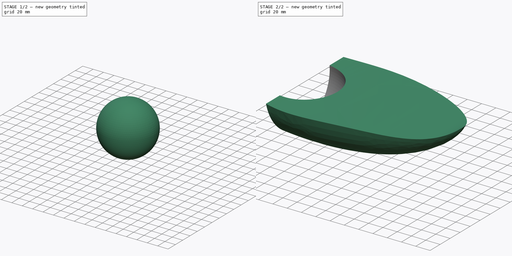
[diagram: build sequence overview — one tinted view per stage of 2, left to right]
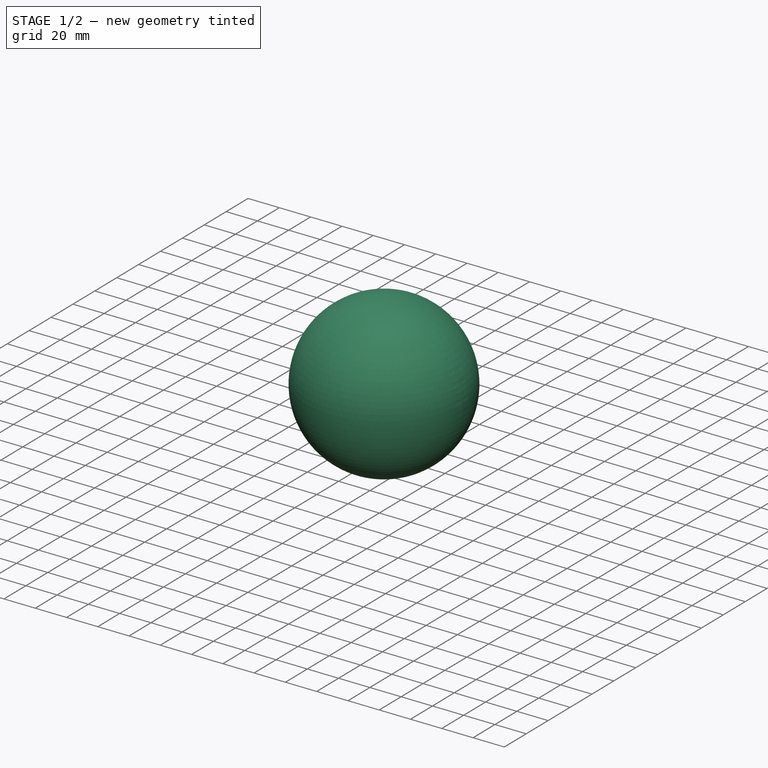
[diagram: stage 1 of 2 — iso view after this stage's code; geometry added in this stage tinted green]
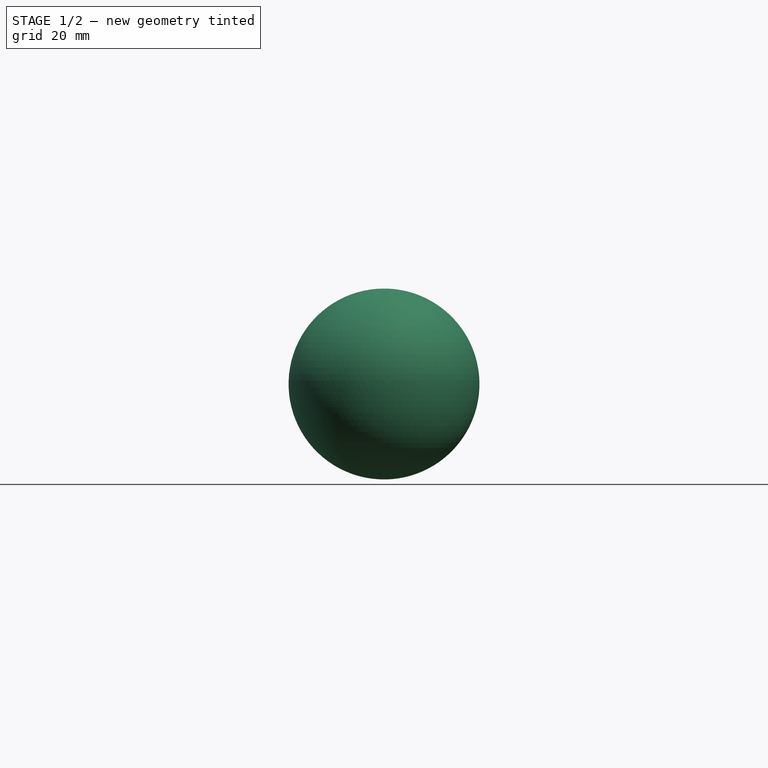
[diagram: stage 1 of 2 — front view after this stage's code; geometry added in this stage tinted green]
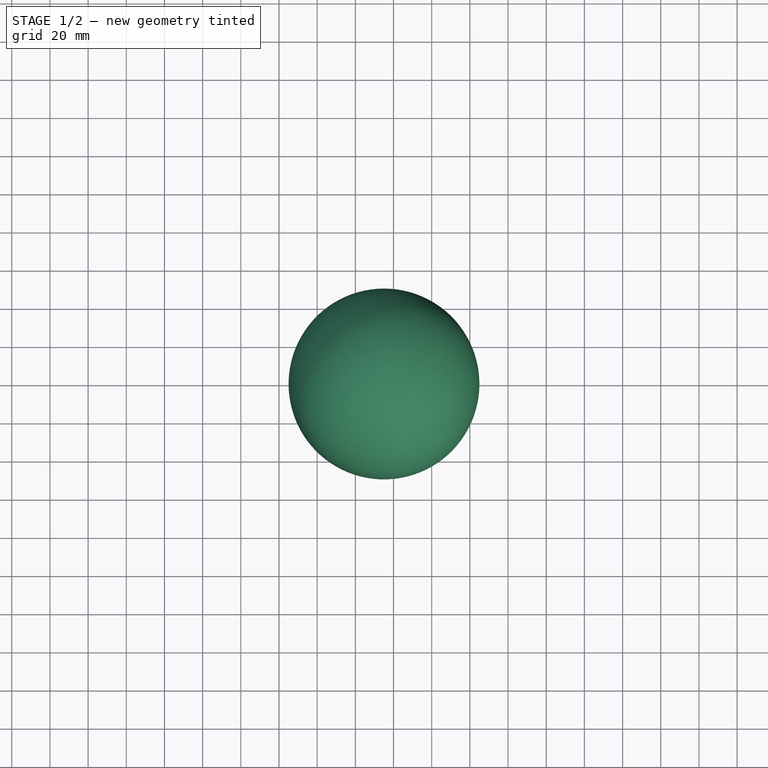
[diagram: stage 1 of 2 — top view after this stage's code; geometry added in this stage tinted green]
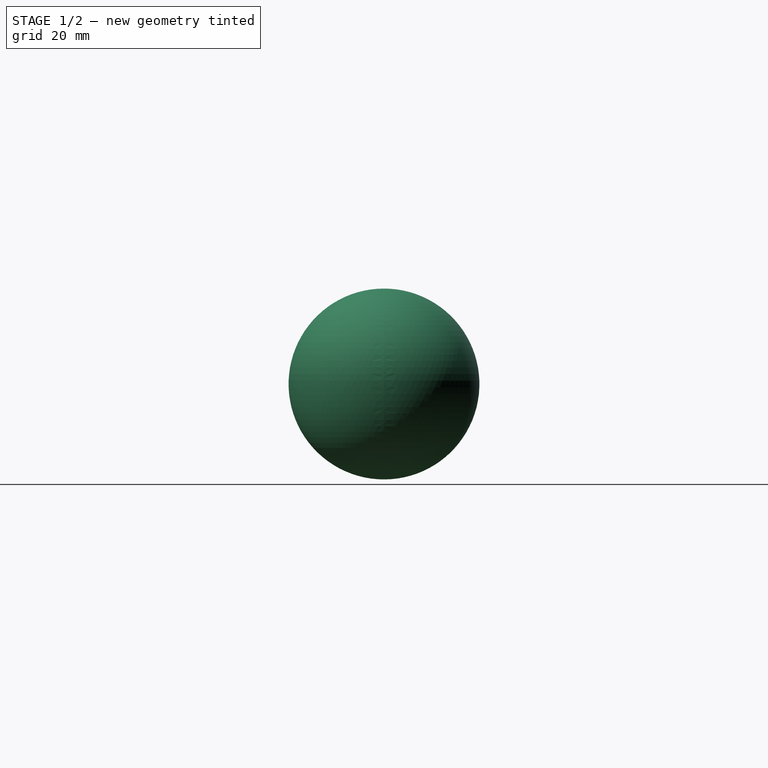
[diagram: stage 1 of 2 — right view after this stage's code; geometry added in this stage tinted green]
FCSTD DOCUMENT  (FreeCAD 0.20R29410 (Git))
Label: MangoJelly_Solutions_Tutorial_Ep11_2
License: All rights reserved
LicenseURL: http://en.wikipedia.org/wiki/All_rights_reserved
objects: Sketcher::SketchObject×6, Part::RuledSurface×2, Part::Compound×2, Part::Loft×1, Part::Feature×1, Part::Sphere×1, Part::Cut×1
note: 14 computed .brp shape members not serialized (recipe doc carries the construction recipe); baked Part::Feature solids carry a one-line shape summary decoded from their .brp

FEATURE [Sketcher::SketchObject] Sketch
  FullyConstrained = false
  sketch-geometry (4):
    g0: LineSegment StartX=-121.31 StartY=0 StartZ=0 EndX=-71.3096 EndY=0 EndZ=0
    g1: LineSegment StartX=-71.3096 StartY=0 StartZ=0 EndX=48.6904 EndY=0 EndZ=0
    g2: LineSegment StartX=48.6904 StartY=0 StartZ=0 EndX=78.6904 EndY=0 EndZ=0
    g3: LineSegment StartX=78.6904 StartY=0 StartZ=0 EndX=128.69 EndY=0 EndZ=0
  constraints (12):
    c: PointOnObject(g0,g-1)
    c: PointOnObject(g0,g-1)
    c: Coincident(g0,g1)
    c: PointOnObject(g1,g-1)
    c: Coincident(g1,g2)
    c: PointOnObject(g2,g-1)
    c: Coincident(g2,g3)
    c: PointOnObject(g3,g-1)
    c: DistanceX(g0,g0) = 50
    c: DistanceX(g1,g1) = 120
    c: DistanceX(g2,g2) = 30
    c: DistanceX(g3,g3) = 50
FEATURE [Sketcher::SketchObject] Sketch001
  FullyConstrained = false
  MapMode = 7
  Placement = pos=(-121.31,0,0) rot=(0.57735,-0.57735,-0.57735;2.0944rad)
  Support = -> [Sketch]
  sketch-geometry (1):
    g0: ArcOfCircle CenterX=0 CenterY=25.651 CenterZ=0 NormalX=0 NormalY=0 NormalZ=1 AngleXU=0 Radius=80.1439 StartAngle=3.40302 EndAngle=6.02176
  constraints (1):
    c: PointOnObject(g0,g-2)
FEATURE [Sketcher::SketchObject] Sketch002
  FullyConstrained = false
  MapMode = 7
  Placement = pos=(-71.3096,0,0) rot=(0.57735,-0.57735,-0.57735;2.0944rad)
  Support = -> [Sketch]
  sketch-geometry (1):
    g0: ArcOfCircle CenterX=0 CenterY=25.651 CenterZ=0 NormalX=0 NormalY=0 NormalZ=1 AngleXU=0 Radius=82.2679 StartAngle=3.40623 EndAngle=5.99204
  constraints (1):
    c: PointOnObject(g0,g-2)
FEATURE [Sketcher::SketchObject] Sketch003
  FullyConstrained = false
  MapMode = 7
  Placement = pos=(48.6904,0,0) rot=(0.57735,-0.57735,-0.57735;2.0944rad)
  Support = -> [Sketch]
  sketch-geometry (1):
    g0: ArcOfCircle CenterX=0 CenterY=25.651 CenterZ=0 NormalX=0 NormalY=0 NormalZ=1 AngleXU=0 Radius=61.8702 StartAngle=3.58608 EndAngle=5.8387
  constraints (1):
    c: PointOnObject(g0,g-2)
FEATURE [Sketcher::SketchObject] Sketch004
  FullyConstrained = false
  MapMode = 7
  Placement = pos=(78.6904,0,0) rot=(0.57735,-0.57735,-0.57735;2.0944rad)
  Support = -> [Sketch]
  sketch-geometry (1):
    g0: ArcOfCircle CenterX=0 CenterY=25.651 CenterZ=0 NormalX=0 NormalY=0 NormalZ=1 AngleXU=0 Radius=45.1261 StartAngle=3.79106 EndAngle=5.63372
  constraints (1):
    c: PointOnObject(g0,g-2)
FEATURE [Sketcher::SketchObject] Sketch005
  FullyConstrained = false
  Placement = pos=(100,0,0) rot=(0.57735,0.57735,0.57735;2.0944rad)
  sketch-geometry (1):
    g0: GeomPoint X=0 Y=4.66415 Z=0
  constraints (1):
    c: PointOnObject(g0,g-2)
FEATURE [Part::Loft] Loft
  Closed = false
  MaxDegree = 5
  Ruled = false
  Sections = -> [Sketch001,Sketch002,Sketch003,Sketch004,Sketch005]
  Solid = false
FEATURE [Part::RuledSurface] Ruled_Surface
  Curve1 = -> Loft [Edge4]
  Curve2 = -> Loft [Edge2]
  Orientation = 0
FEATURE [Part::RuledSurface] Ruled_Surface001
  Curve1 = -> Loft [Edge1]
  Curve2 = -> Ruled_Surface [Edge2]
  Orientation = 0
FEATURE [Part::Compound] Compound
  Links = -> [Loft,Ruled_Surface,Ruled_Surface001]
FEATURE [Part::Compound] Compound001
  Links = -> [Compound]
FEATURE [Part::Feature] Compound001_solid  label="Compound001 (Solid)"
  shape: bbox 221.3 x 171.6 x 88.78 mm, 3 faces (baked)
FEATURE [Part::Sphere] Sphere
  Angle1 = -90
  Angle2 = 90
  Angle3 = 360
  AttacherType = Attacher::AttachEngine3D
  Placement = pos=(-125,0,0) rot=(0,0,1;0rad)
  Radius = 50
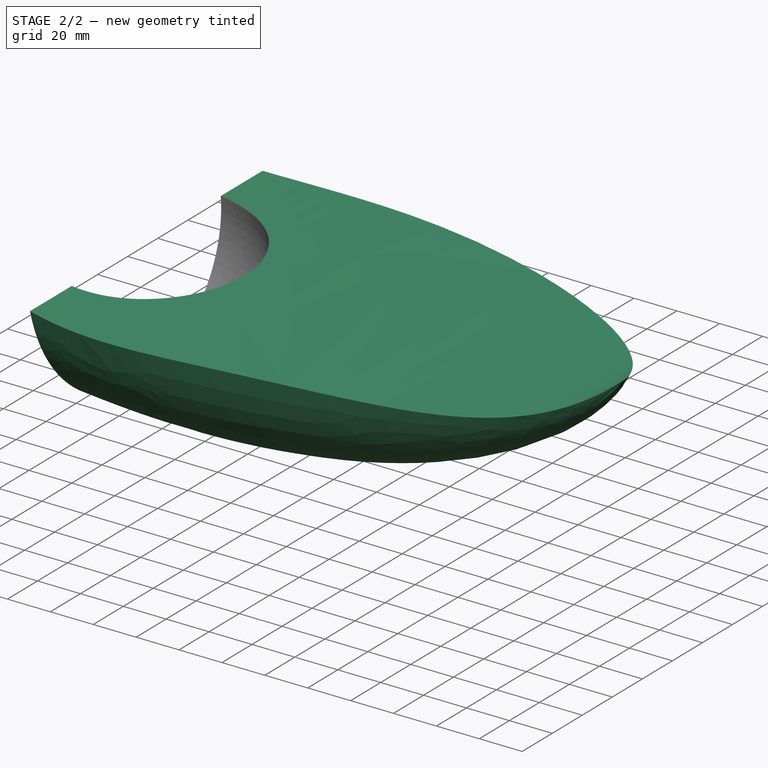
[diagram: stage 2 of 2 — iso view after this stage's code; geometry added in this stage tinted green]
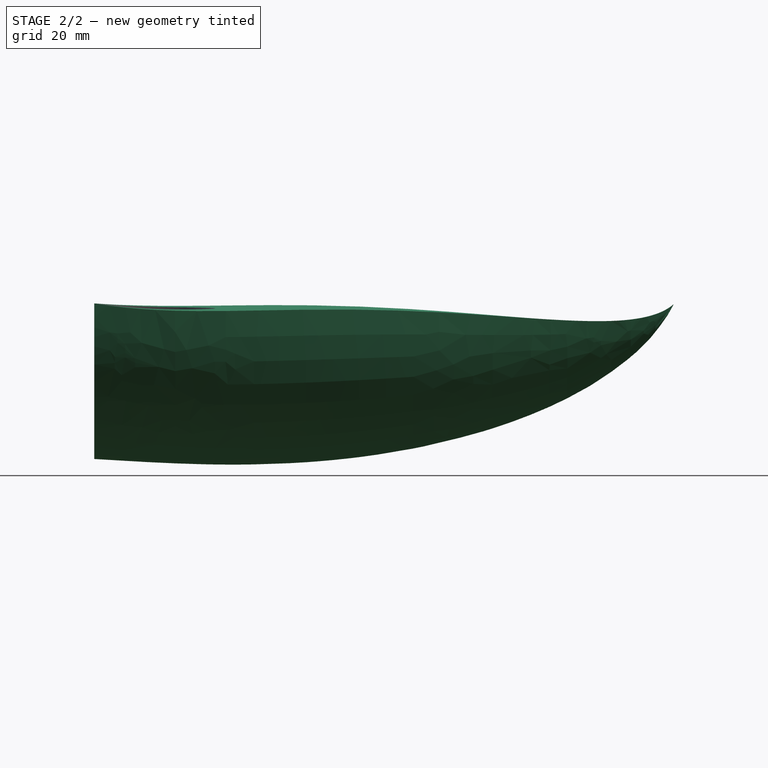
[diagram: stage 2 of 2 — front view after this stage's code; geometry added in this stage tinted green]
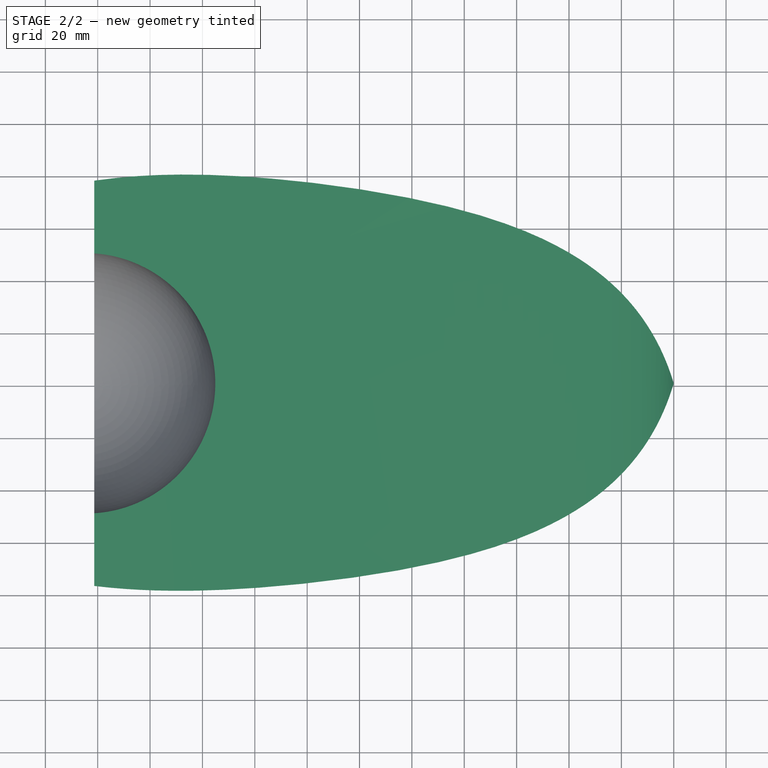
[diagram: stage 2 of 2 — top view after this stage's code; geometry added in this stage tinted green]
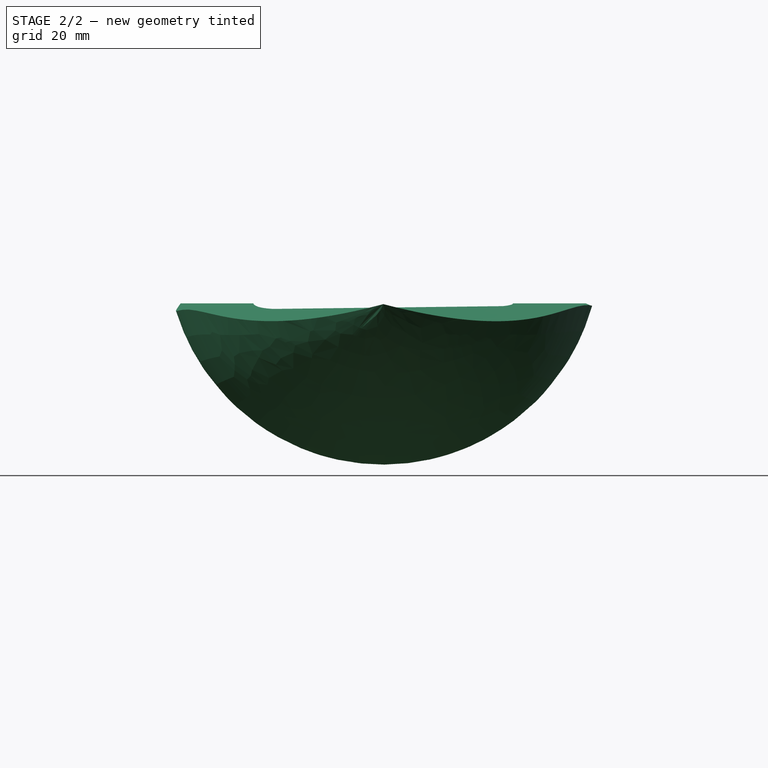
[diagram: stage 2 of 2 — right view after this stage's code; geometry added in this stage tinted green]
FEATURE [Part::Cut] Cut
  Base = -> Compound001_solid
  Tool = -> Sphere
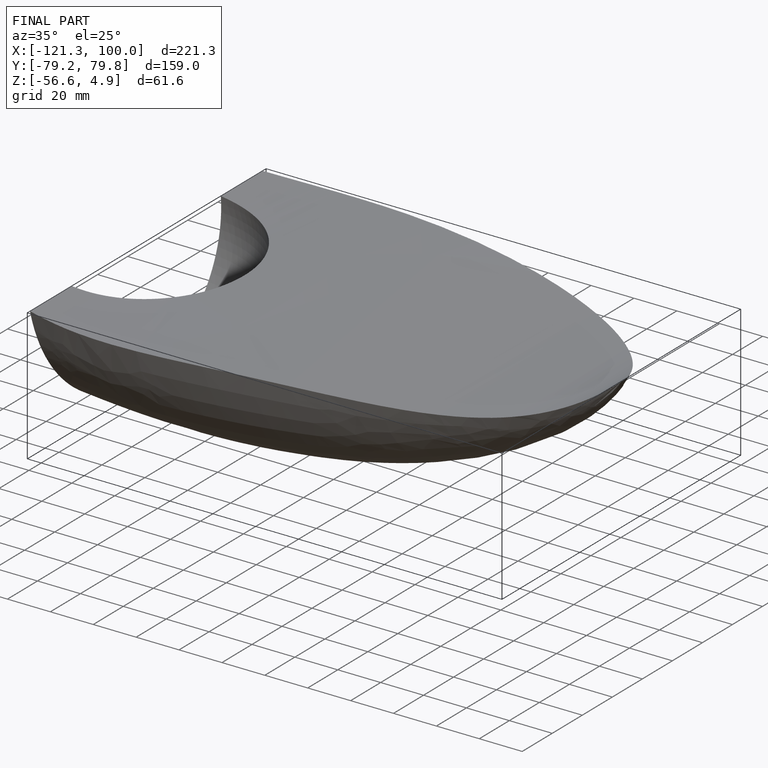
[diagram: finished part — iso view with bounding-box wireframe]
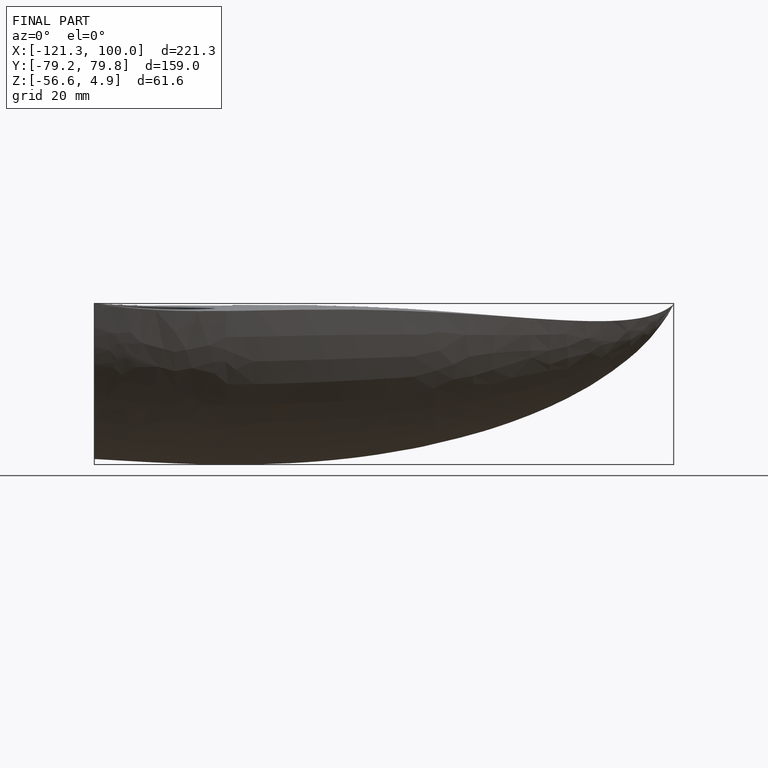
[diagram: finished part — front view with bounding-box wireframe]
